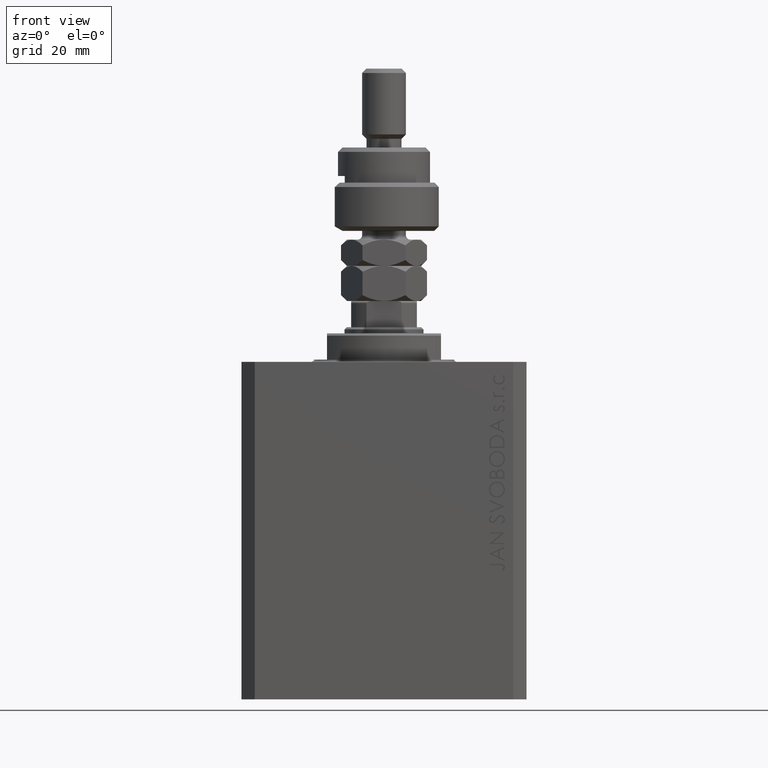
[diagram: clean part render]
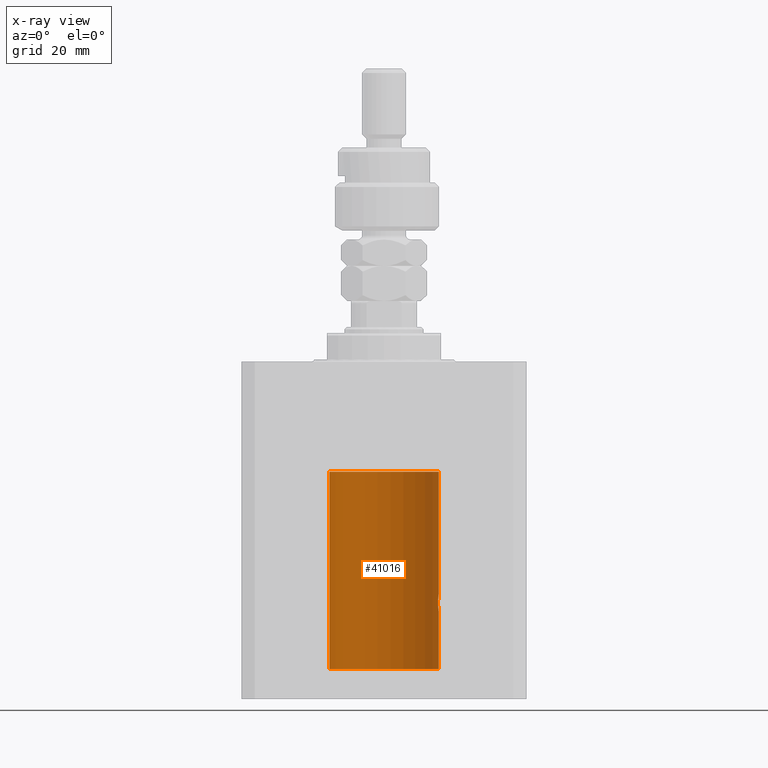
[diagram: x-ray — body ghosted, one internal face saturated and labeled with its STEP entity id]
A machine part, front view, then the same camera in x-ray: the body is ghosted and one INTERNAL B-rep face — a face not visible from any outside direction — is saturated and labeled: STEP entity #41016.
In plain terms, the highlighted cylindrical surface (partial cylindrical patch) has radius 12.5 mm, axis along (0, 0, 1).
Its self-contained STEP definition (entity closure, byte-faithful):
#74 = CARTESIAN_POINT ( 'NONE',  ( 12.37760587642916477, 1.747868572747724114, -56.00639653169000098 ) ) ;
#285 = VECTOR ( 'NONE', #14944, 1000.000000000000000 ) ;
#468 = DIRECTION ( 'NONE',  ( -0.000000000000000000, -0.000000000000000000, 1.000000000000000000 ) ) ;
#698 = B_SPLINE_CURVE_WITH_KNOTS ( 'NONE', 3,
 ( #46942, #27999, #43402, #23443, #42659, #15328, #38866, #38364, #27494, #19134, #38610, #23189, #25609, #37501, #33227, #37003, #13706, #40551 ),
 .UNSPECIFIED., .F., .F.,
 ( 4, 2, 2, 2, 2, 2, 2, 2, 4 ),
 ( 0.003132244164174471934, 0.003523586189974247697, 0.003914928215774023459, 0.004306270241573798355, 0.004697612267373574985, 0.005088954293173349880, 0.005480296318973125642, 0.005871638344772901405, 0.006262980370572677168 ),
 .UNSPECIFIED. ) ;
#2637 = EDGE_CURVE ( 'NONE', #21484, #34867, #6361, .T. ) ;
#3893 = EDGE_CURVE ( 'NONE', #20109, #27930, #11356, .T. ) ;
#4622 = CARTESIAN_POINT ( 'NONE',  ( 12.33896267925302581, 2.000000000000254463, -55.00000000000000000 ) ) ;
#5117 = CARTESIAN_POINT ( 'NONE',  ( 12.44079900692650753, 1.220007525301745277, -56.59017579083666760 ) ) ;
#5521 = EDGE_CURVE ( 'NONE', #35960, #20109, #698, .T. ) ;
#5773 = DIRECTION ( 'NONE',  ( -0.000000000000000000, -0.000000000000000000, 1.000000000000000000 ) ) ;
#5991 = CARTESIAN_POINT ( 'NONE',  ( 0.000000000000000000, 0.000000000000000000, -70.09999999999999432 ) ) ;
#6361 = LINE ( 'NONE', #11157, #285 ) ;
#7427 = EDGE_CURVE ( 'NONE', #43958, #49086, #17513, .T. ) ;
#7554 = CARTESIAN_POINT ( 'NONE',  ( 12.50000000000000000, 0.000000000000000000, -70.09999999999999432 ) ) ;
#8421 = CARTESIAN_POINT ( 'NONE',  ( 12.39869754437269123, 1.598954131913734145, -56.22932152813013573 ) ) ;
#9523 = ORIENTED_EDGE ( 'NONE', *, *, #23191, .F. ) ;
#11157 = CARTESIAN_POINT ( 'NONE',  ( -12.50000000000000000, 1.530808498934191127E-15, -70.09999999999999432 ) ) ;
#11356 = LINE ( 'NONE', #7554, #24578 ) ;
#12541 = DIRECTION ( 'NONE',  ( 0.000000000000000000, 0.000000000000000000, 1.000000000000000000 ) ) ;
#13605 = FACE_OUTER_BOUND ( 'NONE', #44991, .T. ) ;
#13706 = CARTESIAN_POINT ( 'NONE',  ( 12.50000000000000000, 0.1306079576516681051, -52.99999999999999289 ) ) ;
#14420 = ORIENTED_EDGE ( 'NONE', *, *, #5521, .T. ) ;
#14944 = DIRECTION ( 'NONE',  ( -0.000000000000000000, -0.000000000000000000, 1.000000000000000000 ) ) ;
#14996 = CARTESIAN_POINT ( 'NONE',  ( -12.50000000000000000, 1.530808498934191127E-15, -70.09999999999999432 ) ) ;
#15328 = CARTESIAN_POINT ( 'NONE',  ( 12.37021546997940113, 1.797317011867410219, -54.11295119741077286 ) ) ;
#15510 = CARTESIAN_POINT ( 'NONE',  ( 12.33896267925302759, 2.000000000000254463, -55.26143174220786136 ) ) ;
#16051 = ORIENTED_EDGE ( 'NONE', *, *, #32806, .T. ) ;
#16681 = CARTESIAN_POINT ( 'NONE',  ( 12.50000000000000000, 0.000000000000000000, -70.09999999999999432 ) ) ;
#17513 = LINE ( 'NONE', #28436, #21463 ) ;
#18562 = B_SPLINE_CURVE_WITH_KNOTS ( 'NONE', 3,
 ( #27677, #43082, #39807, #31980, #20321, #38790, #23370, #5117, #35011, #8421, #74, #39302, #15510, #4622 ),
 .UNSPECIFIED., .F., .F.,
 ( 4, 2, 2, 2, 2, 2, 4 ),
 ( 4.027442422438711134E-18, 0.0003915305205218086665, 0.0007830610410436133215, 0.001174591561565418085, 0.001566122082087222740, 0.002349183123130847445, 0.003132244164174471934 ),
 .UNSPECIFIED. ) ;
#19134 = CARTESIAN_POINT ( 'NONE',  ( 12.43037348241797879, 1.320834183883846435, -53.49243837704294435 ) ) ;
#19390 = CARTESIAN_POINT ( 'NONE',  ( -12.50000000000000000, 1.530808498934191127E-15, -25.10000000000000142 ) ) ;
#20109 = VERTEX_POINT ( 'NONE', #27989 ) ;
#20321 = CARTESIAN_POINT ( 'NONE',  ( 12.48390005916862755, 0.6457215011736598953, -56.89742771554266199 ) ) ;
#20820 = DIRECTION ( 'NONE',  ( -0.000000000000000000, -0.000000000000000000, 1.000000000000000000 ) ) ;
#21061 = CIRCLE ( 'NONE', #37216, 12.50000000000000000 ) ;
#21463 = VECTOR ( 'NONE', #20820, 1000.000000000000000 ) ;
#21484 = VERTEX_POINT ( 'NONE', #14996 ) ;
#23189 = CARTESIAN_POINT ( 'NONE',  ( 12.46011632531799407, 1.003644408234889429, -53.26516799687669135 ) ) ;
#23191 = EDGE_CURVE ( 'NONE', #43958, #21484, #21061, .T. ) ;
#23370 = CARTESIAN_POINT ( 'NONE',  ( 12.46019522898365217, 1.002712894177341107, -56.73540896027601832 ) ) ;
#23443 = CARTESIAN_POINT ( 'NONE',  ( 12.34924836377099844, 1.935649219704940194, -54.48002062127162759 ) ) ;
#23718 = EDGE_CURVE ( 'NONE', #27930, #34867, #25944, .T. ) ;
#24578 = VECTOR ( 'NONE', #468, 1000.000000000000000 ) ;
#24928 = DIRECTION ( 'NONE',  ( 1.000000000000000000, 0.000000000000000000, 0.000000000000000000 ) ) ;
#25020 = CYLINDRICAL_SURFACE ( 'NONE', #29852, 12.50000000000000000 ) ;
#25609 = CARTESIAN_POINT ( 'NONE',  ( 12.46910683544638232, 0.8866026273585058126, -53.20247863689694157 ) ) ;
#25944 = CIRCLE ( 'NONE', #41291, 12.50000000000000000 ) ;
#27494 = CARTESIAN_POINT ( 'NONE',  ( 12.40916530024876963, 1.507117913375724649, -53.67865955049006033 ) ) ;
#27677 = CARTESIAN_POINT ( 'NONE',  ( 12.50000000000000000, -2.972540724237087735E-15, -57.00000000000000000 ) ) ;
#27930 = VERTEX_POINT ( 'NONE', #40828 ) ;
#27989 = CARTESIAN_POINT ( 'NONE',  ( 12.50000000000000000, -7.266276684081261841E-23, -53.00000000000000000 ) ) ;
#27999 = CARTESIAN_POINT ( 'NONE',  ( 12.33896267925302226, 2.000000000000254463, -54.86934705949917657 ) ) ;
#28436 = CARTESIAN_POINT ( 'NONE',  ( 12.50000000000000000, 0.000000000000000000, -70.09999999999999432 ) ) ;
#29074 = CARTESIAN_POINT ( 'NONE',  ( 0.000000000000000000, 0.000000000000000000, -70.09999999999999432 ) ) ;
#29852 = AXIS2_PLACEMENT_3D ( 'NONE', #29074, #5773, #47772 ) ;
#31233 = ORIENTED_EDGE ( 'NONE', *, *, #7427, .T. ) ;
#31980 = CARTESIAN_POINT ( 'NONE',  ( 12.48989642018887736, 0.5185418732824300658, -56.93601292187608465 ) ) ;
#32597 = DIRECTION ( 'NONE',  ( 1.000000000000000000, 0.000000000000000000, 0.000000000000000000 ) ) ;
#32806 = EDGE_CURVE ( 'NONE', #49086, #35960, #18562, .T. ) ;
#33227 = CARTESIAN_POINT ( 'NONE',  ( 12.48983962833819028, 0.5199974825204921602, -53.06435160808016605 ) ) ;
#34268 = ORIENTED_EDGE ( 'NONE', *, *, #23718, .T. ) ;
#34804 = CARTESIAN_POINT ( 'NONE',  ( 12.50000000000000000, -2.972540724237087735E-15, -57.00000000000000000 ) ) ;
#34867 = VERTEX_POINT ( 'NONE', #19390 ) ;
#35011 = CARTESIAN_POINT ( 'NONE',  ( 12.43016561391612207, 1.322713721413891319, -56.50578877836699121 ) ) ;
#35960 = VERTEX_POINT ( 'NONE', #42660 ) ;
#35989 = ORIENTED_EDGE ( 'NONE', *, *, #3893, .T. ) ;
#36568 = CARTESIAN_POINT ( 'NONE',  ( 0.000000000000000000, 0.000000000000000000, -25.10000000000000142 ) ) ;
#37003 = CARTESIAN_POINT ( 'NONE',  ( 12.49788668346400122, 0.2632864803365722595, -53.01308975838332316 ) ) ;
#37216 = AXIS2_PLACEMENT_3D ( 'NONE', #5991, #43954, #32597 ) ;
#37501 = CARTESIAN_POINT ( 'NONE',  ( 12.48395395845270528, 0.6446573166014709644, -53.10222124213520090 ) ) ;
#38364 = CARTESIAN_POINT ( 'NONE',  ( 12.39867611624532806, 1.590019252152835794, -53.77984495929610631 ) ) ;
#38610 = CARTESIAN_POINT ( 'NONE',  ( 12.44079117518645461, 1.220047488436375227, -53.40989676335082237 ) ) ;
#38790 = CARTESIAN_POINT ( 'NONE',  ( 12.46901623405143766, 0.8878913781257957716, -56.79689651717549737 ) ) ;
#38866 = CARTESIAN_POINT ( 'NONE',  ( 12.37925647381943506, 1.734744884174225898, -53.99620732598648942 ) ) ;
#39302 = CARTESIAN_POINT ( 'NONE',  ( 12.34779119491631505, 1.947363444907015184, -55.52502775168252924 ) ) ;
#39807 = CARTESIAN_POINT ( 'NONE',  ( 12.49789833780794446, 0.2625555164371062844, -56.98698170822145670 ) ) ;
#40551 = CARTESIAN_POINT ( 'NONE',  ( 12.50000000000000000, -7.266276684081261841E-23, -53.00000000000000000 ) ) ;
#40828 = CARTESIAN_POINT ( 'NONE',  ( 12.50000000000000000, 0.000000000000000000, -25.10000000000000142 ) ) ;
#41016 = ADVANCED_FACE ( 'NONE', ( #13605 ), #25020, .F. ) ;
#41291 = AXIS2_PLACEMENT_3D ( 'NONE', #36568, #12541, #24928 ) ;
#42659 = CARTESIAN_POINT ( 'NONE',  ( 12.35520276972935250, 1.897773362058245761, -54.35528278634336630 ) ) ;
#42660 = CARTESIAN_POINT ( 'NONE',  ( 12.33896267925302581, 2.000000000000254463, -55.00000000000000000 ) ) ;
#43082 = CARTESIAN_POINT ( 'NONE',  ( 12.50000000000000533, 0.1324055009716460785, -57.00000000000003553 ) ) ;
#43402 = CARTESIAN_POINT ( 'NONE',  ( 12.34110728646152211, 1.986893050944461780, -54.73661347764981144 ) ) ;
#43954 = DIRECTION ( 'NONE',  ( 0.000000000000000000, 0.000000000000000000, 1.000000000000000000 ) ) ;
#43958 = VERTEX_POINT ( 'NONE', #16681 ) ;
#44991 = EDGE_LOOP ( 'NONE', ( #47451, #9523, #31233, #16051, #14420, #35989, #34268 ) ) ;
#46942 = CARTESIAN_POINT ( 'NONE',  ( 12.33896267925302581, 2.000000000000254463, -55.00000000000000000 ) ) ;
#47451 = ORIENTED_EDGE ( 'NONE', *, *, #2637, .F. ) ;
#47772 = DIRECTION ( 'NONE',  ( 1.000000000000000000, 0.000000000000000000, 0.000000000000000000 ) ) ;
#49086 = VERTEX_POINT ( 'NONE', #34804 ) ;